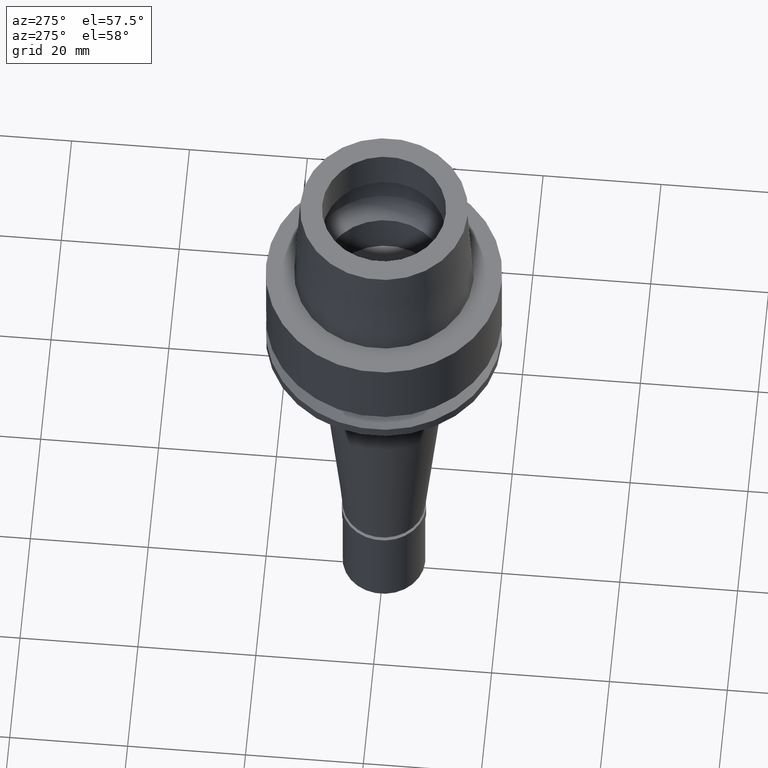
[diagram: clean part render]
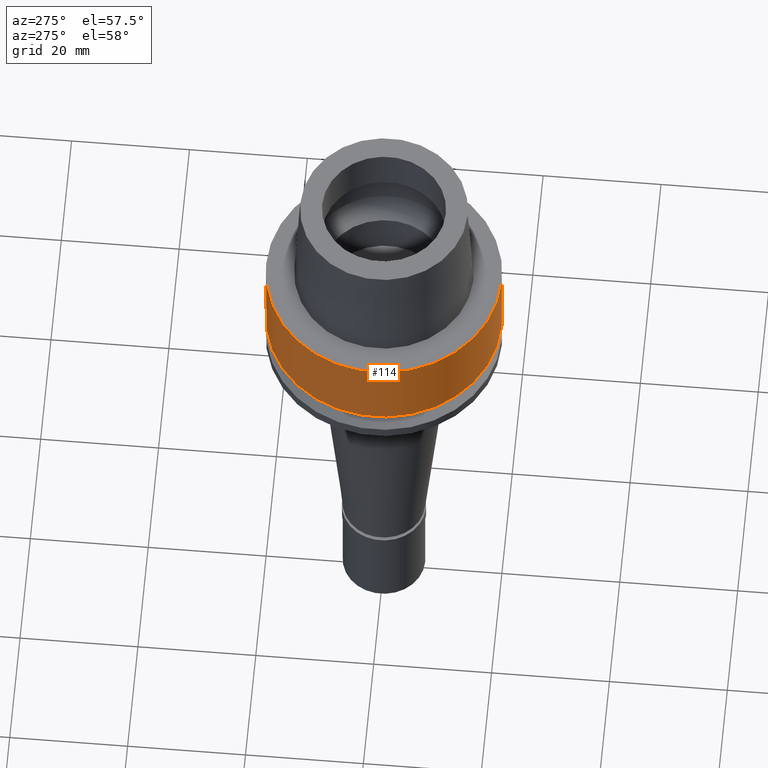
[diagram: same view with one face highlighted and labeled with its STEP entity id]
A machine part, auxiliary view. The second image highlights one B-rep face of the part: STEP entity #114.
In plain terms, the highlighted cylindrical surface (partial cylindrical patch) has radius 20 mm, axis along (0, 0, 1).
Its self-contained STEP definition (entity closure, byte-faithful):
#12 = CARTESIAN_POINT ( 'NONE',  ( 0.0000000000000000000, 20.00000000000000000, 9.473903143467999112E-14 ) ) ;
#32 = CARTESIAN_POINT ( 'NONE',  ( 0.0000000000000000000, 0.0000000000000000000, 1.705302565823999875E-13 ) ) ;
#114 = ADVANCED_FACE ( 'NONE', ( #1566 ), #2605, .T. ) ;
#205 = LINE ( 'NONE', #1255, #1179 ) ;
#311 = VERTEX_POINT ( 'NONE', #2690 ) ;
#343 = ORIENTED_EDGE ( 'NONE', *, *, #351, .F. ) ;
#351 = EDGE_CURVE ( 'NONE', #2028, #311, #205, .T. ) ;
#383 = EDGE_CURVE ( 'NONE', #2028, #2599, #685, .T. ) ;
#389 = CARTESIAN_POINT ( 'NONE',  ( 0.0000000000000000000, 0.0000000000000000000, -13.97927405538000123 ) ) ;
#530 = DIRECTION ( 'NONE',  ( 0.0000000000000000000, 0.0000000000000000000, 1.000000000000000000 ) ) ;
#630 = EDGE_CURVE ( 'NONE', #2000, #311, #2349, .T. ) ;
#685 = CIRCLE ( 'NONE', #2612, 20.00000000000000000 ) ;
#729 = CARTESIAN_POINT ( 'NONE',  ( 0.0000000000000000000, 0.0000000000000000000, -91.30000000000001137 ) ) ;
#865 = DIRECTION ( 'NONE',  ( 0.0000000000000000000, 0.0000000000000000000, -1.000000000000000000 ) ) ;
#875 = AXIS2_PLACEMENT_3D ( 'NONE', #389, #1377, #1997 ) ;
#1037 = LINE ( 'NONE', #12, #2223 ) ;
#1086 = DIRECTION ( 'NONE',  ( 0.0000000000000000000, 2.439758400998999725E-14, -1.000000000000000000 ) ) ;
#1092 = CARTESIAN_POINT ( 'NONE',  ( 0.0000000000000000000, 20.00000000000000000, -13.97927405538000123 ) ) ;
#1179 = VECTOR ( 'NONE', #2081, 1000.000000000000000 ) ;
#1239 = ORIENTED_EDGE ( 'NONE', *, *, #2372, .T. ) ;
#1255 = CARTESIAN_POINT ( 'NONE',  ( 0.0000000000000000000, -20.00000000000000000, 9.473903143467999112E-14 ) ) ;
#1315 = CARTESIAN_POINT ( 'NONE',  ( 0.0000000000000000000, 20.00000000000000000, 1.705302565823999875E-13 ) ) ;
#1371 = DIRECTION ( 'NONE',  ( 0.0000000000000000000, 1.000000000000000000, 0.0000000000000000000 ) ) ;
#1377 = DIRECTION ( 'NONE',  ( 0.0000000000000000000, 0.0000000000000000000, 1.000000000000000000 ) ) ;
#1461 = DIRECTION ( 'NONE',  ( 0.0000000000000000000, -1.000000000000000000, 0.0000000000000000000 ) ) ;
#1566 = FACE_OUTER_BOUND ( 'NONE', #1720, .T. ) ;
#1681 = CARTESIAN_POINT ( 'NONE',  ( 0.0000000000000000000, -20.00000000000000000, 1.705302565823999875E-13 ) ) ;
#1716 = ORIENTED_EDGE ( 'NONE', *, *, #383, .T. ) ;
#1720 = EDGE_LOOP ( 'NONE', ( #1802, #343, #1716, #1239 ) ) ;
#1802 = ORIENTED_EDGE ( 'NONE', *, *, #630, .T. ) ;
#1997 = DIRECTION ( 'NONE',  ( 0.0000000000000000000, 1.000000000000000000, 0.0000000000000000000 ) ) ;
#2000 = VERTEX_POINT ( 'NONE', #1092 ) ;
#2028 = VERTEX_POINT ( 'NONE', #1681 ) ;
#2081 = DIRECTION ( 'NONE',  ( 0.0000000000000000000, -2.439758400998999725E-14, -1.000000000000000000 ) ) ;
#2223 = VECTOR ( 'NONE', #1086, 1000.000000000000000 ) ;
#2267 = AXIS2_PLACEMENT_3D ( 'NONE', #729, #530, #1371 ) ;
#2349 = CIRCLE ( 'NONE', #875, 20.00000000000000000 ) ;
#2372 = EDGE_CURVE ( 'NONE', #2599, #2000, #1037, .T. ) ;
#2599 = VERTEX_POINT ( 'NONE', #1315 ) ;
#2605 = CYLINDRICAL_SURFACE ( 'NONE', #2267, 20.00000000000000000 ) ;
#2612 = AXIS2_PLACEMENT_3D ( 'NONE', #32, #865, #1461 ) ;
#2690 = CARTESIAN_POINT ( 'NONE',  ( 0.0000000000000000000, -20.00000000000000000, -13.97927405538000123 ) ) ;